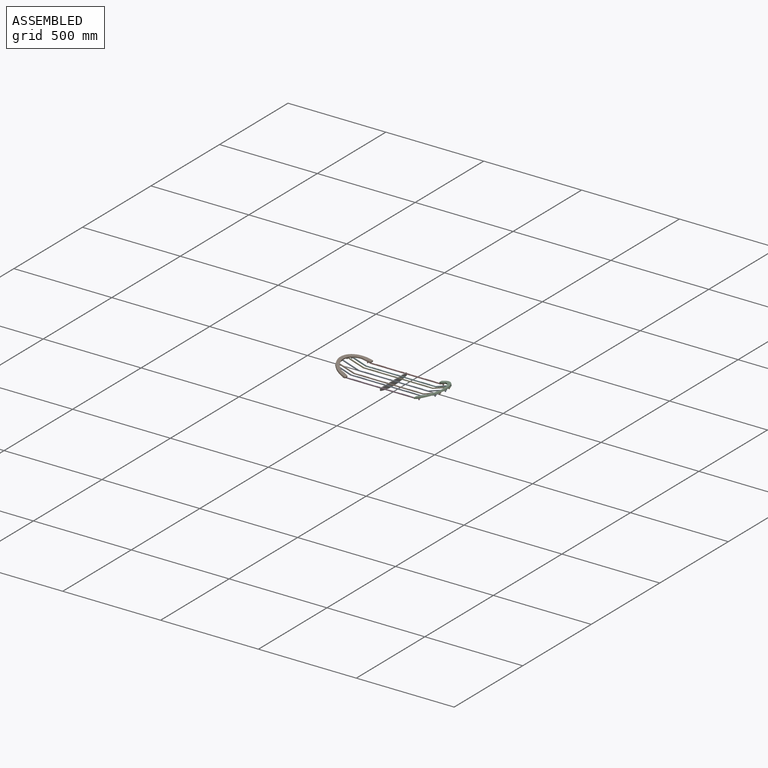
[diagram: assembled view]
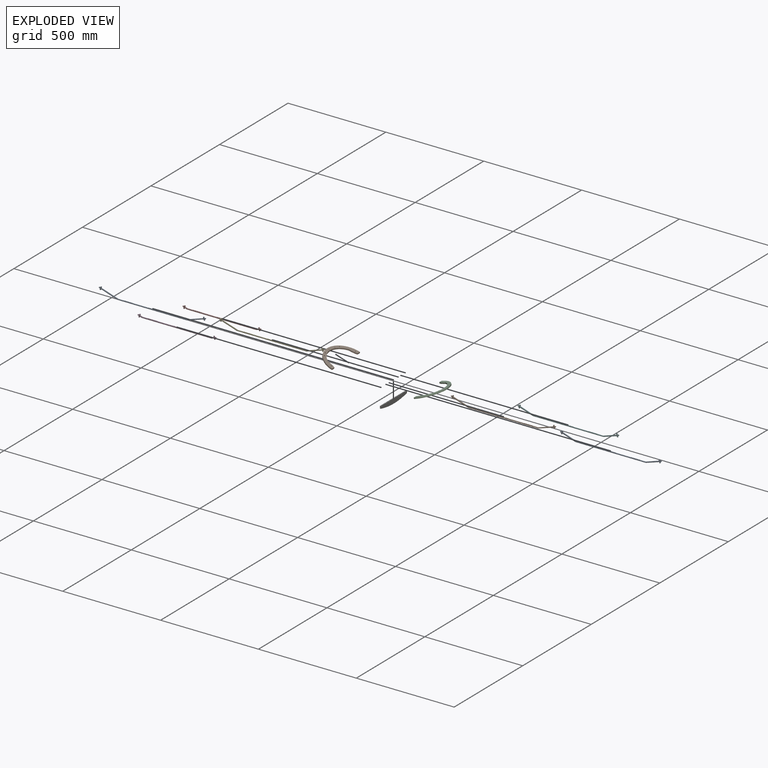
[diagram: exploded view]
GUIDED TOUR — MATED ASSEMBLY (Onshape document d24566d03e6e2440f1f1a7f6, AutoMate assembly d24566d03e6e2440f1f1a7f6_935ead3e7b3816fdfa8bc328_c4fca9ae33e465bc216a4d5f_default)

This assembly has 10 components, labeled P0..P9 below (a component is one placed occurrence of a part; the same part can appear more than once), held together by 9 mates. A mate is a constraint between two components; its type names the relative motion it leaves free:
  FASTENED — locks the two components together rigidly (no relative motion).
Axis/direction vectors are unit vectors and 'through' points are millimeter coordinates, both in the assembly's world frame.

MATES
  1. FASTENED "Fastened 5": P2 <-> P8, direction (-0.952, 0.000, -0.305) through (-121.77, -324.36, -135.49) mm
  2. FASTENED "Fastened 2": P4 <-> P2, direction (0.952, 0.000, 0.305) through (-112.10, -235.62, -132.39) mm
  3. FASTENED "Fastened 3": P2 <-> P9, direction (-0.952, 0.000, -0.305) through (-112.10, -304.44, -132.39) mm
  4. FASTENED "Fastened 7": P2 <-> P3, direction (-0.952, 0.000, -0.305) through (-179.82, -358.46, -154.11) mm
  5. FASTENED "Fastened 1": P0 <-> P2, direction (0.952, 0.000, 0.305) through (-107.26, -270.03, -130.84) mm
  6. FASTENED "Fastened 6": P7 <-> P1, direction (-0.952, 0.000, 0.305) through (-563.58, -181.60, -154.11) mm
  7. FASTENED "Fastened 8": P0 <-> P1, direction (-0.952, 0.000, 0.305) through (-636.14, -270.03, -130.84) mm
  8. FASTENED "Fastened 10": P6 <-> P7, direction (0.000, 0.000, 1.000) through (-371.70, -181.60, -166.36) mm
  9. FASTENED "Fastened 4": P5 <-> P2, direction (0.952, 0.000, 0.305) through (-121.77, -215.69, -135.49) mm

ASSEMBLY ORDER
  1. P2 — the base component [order verified]
  2. P1 [order verified]
  3. P9 [order verified]
  4. P4 [order verified]
  5. P5 [order verified]
  6. P8 [order verified]
  7. P7 [order verified]
  8. P3 [order verified]
  9. P6 [order verified]
  10. P0 [order verified]
Order-tag legend:
  [order verified] — this step's position reverses a verified removal order: the component was checked to insert without passing through the ones already placed.

Of the 10 components, 10 carry the full construction recipe — the FeatureScript program that regenerates the part's solid from scratch; the rest are supplied as boundary geometry only.
Each toured component is shown spotlighted twice — in the assembled view, then in the exploded view, where a leader line traces a displaced component back to its assembled socket (saturated green if recipe-attached, orange if geometry-only; every other component desaturated gray) — followed by its recipe or geometry summary and the mates that hold it.
NOTE — document 2 of 2 of this assembly tour. The two overview renders and the header above are repeated from document 1; the component sections below continue where the previous document stopped.
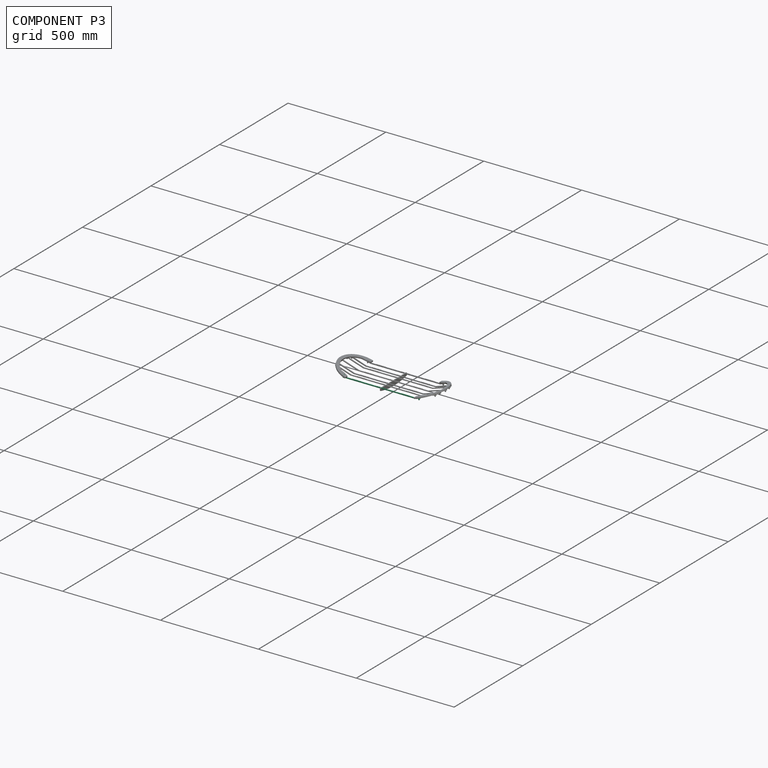
[diagram: component P3 — assembled]
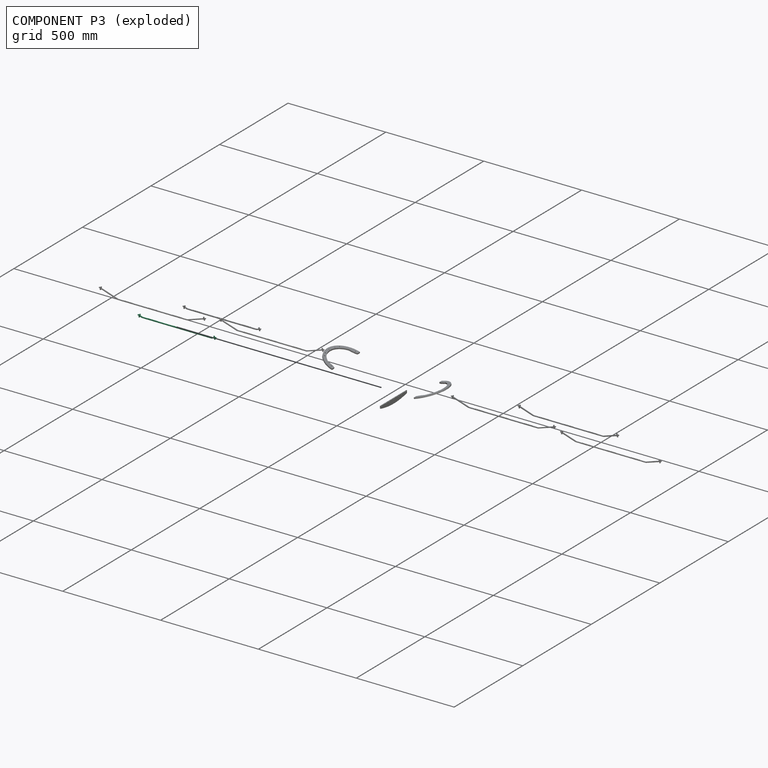
[diagram: component P3 — exploded]
COMPONENT P3 — recipe-attached (CADFS 00899113, mesh-verified: the recipe's output STEP matches this component's geometry to below the mesh-comparison resolution (tessellation chordal tolerance ~0.601 mm)).
Held by: FASTENED mate "Fastened 7" to P2.
Construction recipe (FeatureScript — the CAD program that rebuilds this solid; sketch coordinates are in the units given by the * unit suffixes, e.g. mm):

FeatureScript 1511;
import(path : "onshape/std/geometry.fs", version : "1511.0");
import(path : "onshape/std/common.fs", version : "1511.0");
const mm = millimeter;
const VERTEX = EntityType.VERTEX;
const EDGE = EntityType.EDGE;
const FACE = EntityType.FACE;
const BODY = EntityType.BODY;
function v(x, y){return vector(x, y);}
function OD(order){return orderDisambiguation(order);}
function OSD(set){return originalSetDisambiguation(set);}
function TD(topology){return topologyDisambiguation(topology);}
function TDD(query){return trueDependencyDisambiguation(query);}
function sQuery(a, b, c) {return sketchEntityQuery(a, b, c);}

annotation { "Feature Type Name" : "Feature", "Feature Type Description" : "" }
export const myFeature = defineFeature(function(context is Context, id is Id, definition is map)
    precondition{}
    {
        {
            var Q0;
            Q0=qCreatedBy(makeId("Top.planeOp"),FACE);
            var sketch = newSketch(context, id + "F0", { "sketchPlane" : qUnion([Q0])});
            skLineSegment(sketch, "E0", {"start": v(-319.35, 28.42) * mm, "end": v(36.25, 28.42) * mm});
            skLineSegment(sketch, "E1", {"start": v(-319.35, 28.42) * mm, "end": v(-331.45, 32.3) * mm});
            skLineSegment(sketch, "E2", {"start": v(-331.45, 32.3) * mm, "end": v(-333.23, 26.75) * mm});
            skLineSegment(sketch, "E3", {"start": v(-333.23, 26.75) * mm, "end": v(-337.46, 28.1) * mm});
            skLineSegment(sketch, "E4", {"start": v(-337.46, 28.1) * mm, "end": v(-335.68, 33.66) * mm});
            skLineSegment(sketch, "E5", {"start": v(-335.68, 33.66) * mm, "end": v(-341.73, 35.6) * mm});
            skLineSegment(sketch, "E6", {"start": v(-341.73, 35.6) * mm, "end": v(-340.37, 39.84) * mm});
            skLineSegment(sketch, "E7", {"start": v(-340.37, 39.84) * mm, "end": v(-334.32, 37.9) * mm});
            skLineSegment(sketch, "E8", {"start": v(-334.32, 37.9) * mm, "end": v(-332.54, 43.45) * mm});
            skLineSegment(sketch, "E9", {"start": v(-332.54, 43.45) * mm, "end": v(-328.3, 42.09) * mm});
            skLineSegment(sketch, "E10", {"start": v(-328.3, 42.09) * mm, "end": v(-330.09, 36.54) * mm});
            skLineSegment(sketch, "E11", {"start": v(-330.09, 36.54) * mm, "end": v(-318, 32.66) * mm});
            skLineSegment(sketch, "E12", {"start": v(-318, 32.66) * mm, "end": v(-290.5, 32.66) * mm});
            skLineSegment(sketch, "E13", {"start": v(-142.13, 33.8) * mm, "end": v(-141.27, 32.66) * mm});
            skLineSegment(sketch, "E14.MirrorCS", {"start": v(-142.13, 33.8) * mm, "end": v(-143, 32.66) * mm});
            skLineSegment(sketch, "E15.trimOffspring", {"start": v(-141.27, 32.66) * mm, "end": v(-140.5, 32.66) * mm});
            skPoint(sketch, "E16.start.orphan", {"position": v(-141.55, 28.42) * mm});
            skLineSegment(sketch, "E17.direction1", {"start": v(-141.27, 32.66) * mm, "end": v(-140.5, 32.66) * mm, "construction": true});
            skLineSegment(sketch, "E18.1.0.0", {"start": v(-139.63, 33.8) * mm, "end": v(-138.77, 32.66) * mm});
            skLineSegment(sketch, "E18.1.0.1", {"start": v(-139.63, 33.8) * mm, "end": v(-140.5, 32.66) * mm});
            skLineSegment(sketch, "E18.2.0.0", {"start": v(-137.13, 33.8) * mm, "end": v(-136.27, 32.66) * mm});
            skLineSegment(sketch, "E18.2.0.1", {"start": v(-137.13, 33.8) * mm, "end": v(-138, 32.66) * mm});
            skLineSegment(sketch, "E18.3.0.0", {"start": v(-134.63, 33.8) * mm, "end": v(-133.77, 32.66) * mm});
            skLineSegment(sketch, "E18.3.0.1", {"start": v(-134.63, 33.8) * mm, "end": v(-135.5, 32.66) * mm});
            skLineSegment(sketch, "E18.4.0.0", {"start": v(-132.13, 33.8) * mm, "end": v(-131.27, 32.66) * mm});
            skLineSegment(sketch, "E18.4.0.1", {"start": v(-132.13, 33.8) * mm, "end": v(-133, 32.66) * mm});
            skLineSegment(sketch, "E18.5.0.0", {"start": v(-129.63, 33.8) * mm, "end": v(-128.77, 32.66) * mm});
            skLineSegment(sketch, "E18.5.0.1", {"start": v(-129.63, 33.8) * mm, "end": v(-130.5, 32.66) * mm});
            skLineSegment(sketch, "E18.6.0.0", {"start": v(-127.13, 33.8) * mm, "end": v(-126.27, 32.66) * mm});
            skLineSegment(sketch, "E18.6.0.1", {"start": v(-127.13, 33.8) * mm, "end": v(-128, 32.66) * mm});
            skLineSegment(sketch, "E18.7.0.0", {"start": v(-124.63, 33.8) * mm, "end": v(-123.77, 32.66) * mm});
            skLineSegment(sketch, "E18.7.0.1", {"start": v(-124.63, 33.8) * mm, "end": v(-125.5, 32.66) * mm});
            skLineSegment(sketch, "E18.8.0.0", {"start": v(-122.13, 33.8) * mm, "end": v(-121.27, 32.66) * mm});
            skLineSegment(sketch, "E18.8.0.1", {"start": v(-122.13, 33.8) * mm, "end": v(-123, 32.66) * mm});
            skLineSegment(sketch, "E18.9.0.0", {"start": v(-119.63, 33.8) * mm, "end": v(-118.77, 32.66) * mm});
            skLineSegment(sketch, "E18.9.0.1", {"start": v(-119.63, 33.8) * mm, "end": v(-120.5, 32.66) * mm});
            skLineSegment(sketch, "E19.1.0.0", {"start": v(-144.63, 33.8) * mm, "end": v(-145.5, 32.66) * mm});
            skLineSegment(sketch, "E19.1.0.1", {"start": v(-144.63, 33.8) * mm, "end": v(-143.77, 32.66) * mm});
            skLineSegment(sketch, "E19.2.0.0", {"start": v(-147.13, 33.8) * mm, "end": v(-148, 32.66) * mm});
            skLineSegment(sketch, "E19.2.0.1", {"start": v(-147.13, 33.8) * mm, "end": v(-146.27, 32.66) * mm});
            skLineSegment(sketch, "E19.3.0.0", {"start": v(-149.63, 33.8) * mm, "end": v(-150.5, 32.66) * mm});
            skLineSegment(sketch, "E19.3.0.1", {"start": v(-149.63, 33.8) * mm, "end": v(-148.77, 32.66) * mm});
            skLineSegment(sketch, "E19.4.0.0", {"start": v(-152.13, 33.8) * mm, "end": v(-153, 32.66) * mm});
            skLineSegment(sketch, "E19.4.0.1", {"start": v(-152.13, 33.8) * mm, "end": v(-151.27, 32.66) * mm});
            skLineSegment(sketch, "E19.5.0.0", {"start": v(-154.63, 33.8) * mm, "end": v(-155.5, 32.66) * mm});
            skLineSegment(sketch, "E19.5.0.1", {"start": v(-154.63, 33.8) * mm, "end": v(-153.77, 32.66) * mm});
            skLineSegment(sketch, "E19.6.0.0", {"start": v(-157.13, 33.8) * mm, "end": v(-158, 32.66) * mm});
            skLineSegment(sketch, "E19.6.0.1", {"start": v(-157.13, 33.8) * mm, "end": v(-156.27, 32.66) * mm});
            skLineSegment(sketch, "E19.7.0.0", {"start": v(-159.63, 33.8) * mm, "end": v(-160.5, 32.66) * mm});
            skLineSegment(sketch, "E19.7.0.1", {"start": v(-159.63, 33.8) * mm, "end": v(-158.77, 32.66) * mm});
            skLineSegment(sketch, "E19.8.0.0", {"start": v(-162.13, 33.8) * mm, "end": v(-163, 32.66) * mm});
            skLineSegment(sketch, "E19.8.0.1", {"start": v(-162.13, 33.8) * mm, "end": v(-161.27, 32.66) * mm});
            skLineSegment(sketch, "E19.9.0.0", {"start": v(-164.63, 33.8) * mm, "end": v(-165.5, 32.66) * mm});
            skLineSegment(sketch, "E19.9.0.1", {"start": v(-164.63, 33.8) * mm, "end": v(-163.77, 32.66) * mm});
            skLineSegment(sketch, "E19.direction1", {"start": v(-143, 32.66) * mm, "end": v(-143.77, 32.66) * mm, "construction": true});
            skLineSegment(sketch, "E20.trimOffspring", {"start": v(-163.77, 32.66) * mm, "end": v(-163, 32.66) * mm});
            skLineSegment(sketch, "E21.trimOffspring", {"start": v(-161.27, 32.66) * mm, "end": v(-160.5, 32.66) * mm});
            skLineSegment(sketch, "E22.trimOffspring", {"start": v(-158.77, 32.66) * mm, "end": v(-158, 32.66) * mm});
            skLineSegment(sketch, "E23.trimOffspring", {"start": v(-153.77, 32.66) * mm, "end": v(-153, 32.66) * mm});
            skLineSegment(sketch, "E24.trimOffspring", {"start": v(-156.27, 32.66) * mm, "end": v(-155.5, 32.66) * mm});
            skLineSegment(sketch, "E25.trimOffspring", {"start": v(-151.27, 32.66) * mm, "end": v(-150.5, 32.66) * mm});
            skLineSegment(sketch, "E26.trimOffspring", {"start": v(-148.77, 32.66) * mm, "end": v(-148, 32.66) * mm});
            skLineSegment(sketch, "E27.trimOffspring", {"start": v(-146.27, 32.66) * mm, "end": v(-145.5, 32.66) * mm});
            skLineSegment(sketch, "E28.trimOffspring", {"start": v(-143.77, 32.66) * mm, "end": v(-143, 32.66) * mm});
            skLineSegment(sketch, "E29.trimOffspring", {"start": v(-138.77, 32.66) * mm, "end": v(-138, 32.66) * mm, "construction": true});
            skLineSegment(sketch, "E30.trimOffspring", {"start": v(-138.77, 32.66) * mm, "end": v(-138, 32.66) * mm});
            skLineSegment(sketch, "E31.trimOffspring", {"start": v(-136.27, 32.66) * mm, "end": v(-135.5, 32.66) * mm, "construction": true});
            skLineSegment(sketch, "E32.trimOffspring", {"start": v(-136.27, 32.66) * mm, "end": v(-135.5, 32.66) * mm});
            skLineSegment(sketch, "E33.trimOffspring", {"start": v(-133.77, 32.66) * mm, "end": v(-133, 32.66) * mm, "construction": true});
            skLineSegment(sketch, "E34.trimOffspring", {"start": v(-131.27, 32.66) * mm, "end": v(-130.5, 32.66) * mm, "construction": true});
            skLineSegment(sketch, "E35.trimOffspring", {"start": v(-131.27, 32.66) * mm, "end": v(-130.5, 32.66) * mm});
            skLineSegment(sketch, "E36", {"start": v(-133.77, 32.66) * mm, "end": v(-133, 32.66) * mm});
            skLineSegment(sketch, "E37.trimOffspring", {"start": v(-128.77, 32.66) * mm, "end": v(-128, 32.66) * mm, "construction": true});
            skLineSegment(sketch, "E38.trimOffspring", {"start": v(-128.77, 32.66) * mm, "end": v(-128, 32.66) * mm});
            skLineSegment(sketch, "E39.trimOffspring", {"start": v(-126.27, 32.66) * mm, "end": v(-125.5, 32.66) * mm, "construction": true});
            skLineSegment(sketch, "E40.trimOffspring", {"start": v(-126.27, 32.66) * mm, "end": v(-125.5, 32.66) * mm});
            skLineSegment(sketch, "E41.trimOffspring", {"start": v(-123.77, 32.66) * mm, "end": v(-123, 32.66) * mm, "construction": true});
            skLineSegment(sketch, "E42.trimOffspring", {"start": v(-123.77, 32.66) * mm, "end": v(-123, 32.66) * mm});
            skLineSegment(sketch, "E43.trimOffspring", {"start": v(-121.27, 32.66) * mm, "end": v(-120.5, 32.66) * mm, "construction": true});
            skLineSegment(sketch, "E44.trimOffspring", {"start": v(-121.27, 32.66) * mm, "end": v(-120.5, 32.66) * mm});
            skLineSegment(sketch, "E45.trimOffspring", {"start": v(-118.77, 32.66) * mm, "end": v(-116.27, 32.66) * mm, "construction": true});
            skLineSegment(sketch, "E46.trimOffspring", {"start": v(-118.77, 32.66) * mm, "end": v(-40.5, 32.66) * mm});
            skLineSegment(sketch, "E47.1.0.0", {"start": v(5.37, 33.8) * mm, "end": v(6.23, 32.66) * mm});
            skLineSegment(sketch, "E47.1.0.1", {"start": v(5.37, 33.8) * mm, "end": v(4.5, 32.66) * mm});
            skLineSegment(sketch, "E47.1.0.2", {"start": v(2.87, 33.8) * mm, "end": v(3.73, 32.66) * mm});
            skLineSegment(sketch, "E47.1.0.3", {"start": v(2.87, 33.8) * mm, "end": v(2, 32.66) * mm});
            skLineSegment(sketch, "E47.1.0.4", {"start": v(0.37, 33.8) * mm, "end": v(1.23, 32.66) * mm});
            skLineSegment(sketch, "E47.1.0.5", {"start": v(0.37, 33.8) * mm, "end": v(-0.5, 32.66) * mm});
            skLineSegment(sketch, "E47.1.0.6", {"start": v(-2.13, 33.8) * mm, "end": v(-1.27, 32.66) * mm});
            skLineSegment(sketch, "E47.1.0.7", {"start": v(-2.13, 33.8) * mm, "end": v(-3, 32.66) * mm});
            skLineSegment(sketch, "E47.1.0.8", {"start": v(-4.63, 33.8) * mm, "end": v(-3.77, 32.66) * mm});
            skLineSegment(sketch, "E47.1.0.9", {"start": v(-4.63, 33.8) * mm, "end": v(-5.5, 32.66) * mm});
            skLineSegment(sketch, "E47.1.0.10", {"start": v(-7.13, 33.8) * mm, "end": v(-6.27, 32.66) * mm});
            skLineSegment(sketch, "E47.1.0.11", {"start": v(-7.13, 33.8) * mm, "end": v(-8, 32.66) * mm});
            skLineSegment(sketch, "E47.1.0.12", {"start": v(-9.63, 33.8) * mm, "end": v(-8.77, 32.66) * mm});
            skLineSegment(sketch, "E47.1.0.13", {"start": v(-9.63, 33.8) * mm, "end": v(-10.5, 32.66) * mm});
            skLineSegment(sketch, "E47.1.0.14", {"start": v(-12.13, 33.8) * mm, "end": v(-11.27, 32.66) * mm});
            skLineSegment(sketch, "E47.1.0.15", {"start": v(-12.13, 33.8) * mm, "end": v(-13, 32.66) * mm});
            skLineSegment(sketch, "E47.1.0.16", {"start": v(-14.63, 33.8) * mm, "end": v(-13.77, 32.66) * mm});
            skLineSegment(sketch, "E47.1.0.17", {"start": v(-14.63, 33.8) * mm, "end": v(-15.5, 32.66) * mm});
            skLineSegment(sketch, "E47.1.0.18", {"start": v(-17.13, 33.8) * mm, "end": v(-16.27, 32.66) * mm});
            skLineSegment(sketch, "E47.1.0.19", {"start": v(-17.13, 33.8) * mm, "end": v(-18, 32.66) * mm});
            skLineSegment(sketch, "E47.1.0.20", {"start": v(-19.63, 33.8) * mm, "end": v(-18.77, 32.66) * mm});
            skLineSegment(sketch, "E47.1.0.21", {"start": v(-19.63, 33.8) * mm, "end": v(-20.5, 32.66) * mm});
            skLineSegment(sketch, "E47.1.0.22", {"start": v(-22.13, 33.8) * mm, "end": v(-21.27, 32.66) * mm});
            skLineSegment(sketch, "E47.1.0.23", {"start": v(-22.13, 33.8) * mm, "end": v(-23, 32.66) * mm});
            skLineSegment(sketch, "E47.1.0.24", {"start": v(-24.63, 33.8) * mm, "end": v(-23.77, 32.66) * mm});
            skLineSegment(sketch, "E47.1.0.25", {"start": v(-24.63, 33.8) * mm, "end": v(-25.5, 32.66) * mm});
            skLineSegment(sketch, "E47.1.0.26", {"start": v(-27.13, 33.8) * mm, "end": v(-26.27, 32.66) * mm});
            skLineSegment(sketch, "E47.1.0.27", {"start": v(-27.13, 33.8) * mm, "end": v(-28, 32.66) * mm});
            skLineSegment(sketch, "E47.1.0.28", {"start": v(-29.63, 33.8) * mm, "end": v(-28.77, 32.66) * mm});
            skLineSegment(sketch, "E47.1.0.29", {"start": v(-29.63, 33.8) * mm, "end": v(-30.5, 32.66) * mm});
            skLineSegment(sketch, "E47.1.0.30", {"start": v(-32.13, 33.8) * mm, "end": v(-31.27, 32.66) * mm});
            skLineSegment(sketch, "E47.1.0.31", {"start": v(-32.13, 33.8) * mm, "end": v(-33, 32.66) * mm});
            skLineSegment(sketch, "E47.1.0.32", {"start": v(-34.63, 33.8) * mm, "end": v(-33.77, 32.66) * mm});
            skLineSegment(sketch, "E47.1.0.33", {"start": v(-34.63, 33.8) * mm, "end": v(-35.5, 32.66) * mm});
            skLineSegment(sketch, "E47.1.0.34", {"start": v(-37.13, 33.8) * mm, "end": v(-36.27, 32.66) * mm});
            skLineSegment(sketch, "E47.1.0.35", {"start": v(-37.13, 33.8) * mm, "end": v(-38, 32.66) * mm});
            skLineSegment(sketch, "E47.1.0.36", {"start": v(-39.63, 33.8) * mm, "end": v(-38.77, 32.66) * mm});
            skLineSegment(sketch, "E47.1.0.37", {"start": v(-39.63, 33.8) * mm, "end": v(-40.5, 32.66) * mm});
            skLineSegment(sketch, "E48.1.0.0", {"start": v(-244.63, 33.8) * mm, "end": v(-243.77, 32.66) * mm});
            skLineSegment(sketch, "E48.1.0.1", {"start": v(-244.63, 33.8) * mm, "end": v(-245.5, 32.66) * mm});
            skLineSegment(sketch, "E48.1.0.2", {"start": v(-247.13, 33.8) * mm, "end": v(-246.27, 32.66) * mm});
            skLineSegment(sketch, "E48.1.0.3", {"start": v(-247.13, 33.8) * mm, "end": v(-248, 32.66) * mm});
            skLineSegment(sketch, "E48.1.0.4", {"start": v(-249.63, 33.8) * mm, "end": v(-248.77, 32.66) * mm});
            skLineSegment(sketch, "E48.1.0.5", {"start": v(-249.63, 33.8) * mm, "end": v(-250.5, 32.66) * mm});
            skLineSegment(sketch, "E48.1.0.6", {"start": v(-252.13, 33.8) * mm, "end": v(-251.27, 32.66) * mm});
            skLineSegment(sketch, "E48.1.0.7", {"start": v(-252.13, 33.8) * mm, "end": v(-253, 32.66) * mm});
            skLineSegment(sketch, "E48.1.0.8", {"start": v(-254.63, 33.8) * mm, "end": v(-253.77, 32.66) * mm});
            skLineSegment(sketch, "E48.1.0.9", {"start": v(-254.63, 33.8) * mm, "end": v(-255.5, 32.66) * mm});
            skLineSegment(sketch, "E48.1.0.10", {"start": v(-257.13, 33.8) * mm, "end": v(-256.27, 32.66) * mm});
            skLineSegment(sketch, "E48.1.0.11", {"start": v(-257.13, 33.8) * mm, "end": v(-258, 32.66) * mm});
            skLineSegment(sketch, "E48.1.0.12", {"start": v(-259.63, 33.8) * mm, "end": v(-258.77, 32.66) * mm});
            skLineSegment(sketch, "E48.1.0.13", {"start": v(-259.63, 33.8) * mm, "end": v(-260.5, 32.66) * mm});
            skLineSegment(sketch, "E48.1.0.14", {"start": v(-262.13, 33.8) * mm, "end": v(-261.27, 32.66) * mm});
            skLineSegment(sketch, "E48.1.0.15", {"start": v(-262.13, 33.8) * mm, "end": v(-263, 32.66) * mm});
            skLineSegment(sketch, "E48.1.0.16", {"start": v(-264.63, 33.8) * mm, "end": v(-263.77, 32.66) * mm});
            skLineSegment(sketch, "E48.1.0.17", {"start": v(-264.63, 33.8) * mm, "end": v(-265.5, 32.66) * mm});
            skLineSegment(sketch, "E48.1.0.18", {"start": v(-267.13, 33.8) * mm, "end": v(-266.27, 32.66) * mm});
            skLineSegment(sketch, "E48.1.0.19", {"start": v(-267.13, 33.8) * mm, "end": v(-268, 32.66) * mm});
            skLineSegment(sketch, "E48.1.0.20", {"start": v(-289.63, 33.8) * mm, "end": v(-290.5, 32.66) * mm});
            skLineSegment(sketch, "E48.1.0.21", {"start": v(-289.63, 33.8) * mm, "end": v(-288.77, 32.66) * mm});
            skLineSegment(sketch, "E48.1.0.22", {"start": v(-287.13, 33.8) * mm, "end": v(-288, 32.66) * mm});
            skLineSegment(sketch, "E48.1.0.23", {"start": v(-287.13, 33.8) * mm, "end": v(-286.27, 32.66) * mm});
            skLineSegment(sketch, "E48.1.0.24", {"start": v(-284.63, 33.8) * mm, "end": v(-285.5, 32.66) * mm});
            skLineSegment(sketch, "E48.1.0.25", {"start": v(-284.63, 33.8) * mm, "end": v(-283.77, 32.66) * mm});
            skLineSegment(sketch, "E48.1.0.26", {"start": v(-282.13, 33.8) * mm, "end": v(-283, 32.66) * mm});
            skLineSegment(sketch, "E48.1.0.27", {"start": v(-282.13, 33.8) * mm, "end": v(-281.27, 32.66) * mm});
            skLineSegment(sketch, "E48.1.0.28", {"start": v(-279.63, 33.8) * mm, "end": v(-280.5, 32.66) * mm});
            skLineSegment(sketch, "E48.1.0.29", {"start": v(-279.63, 33.8) * mm, "end": v(-278.77, 32.66) * mm});
            skLineSegment(sketch, "E48.1.0.30", {"start": v(-277.13, 33.8) * mm, "end": v(-278, 32.66) * mm});
            skLineSegment(sketch, "E48.1.0.31", {"start": v(-277.13, 33.8) * mm, "end": v(-276.27, 32.66) * mm});
            skLineSegment(sketch, "E48.1.0.32", {"start": v(-274.63, 33.8) * mm, "end": v(-275.5, 32.66) * mm});
            skLineSegment(sketch, "E48.1.0.33", {"start": v(-274.63, 33.8) * mm, "end": v(-273.77, 32.66) * mm});
            skLineSegment(sketch, "E48.1.0.34", {"start": v(-272.13, 33.8) * mm, "end": v(-273, 32.66) * mm});
            skLineSegment(sketch, "E48.1.0.35", {"start": v(-272.13, 33.8) * mm, "end": v(-271.27, 32.66) * mm});
            skLineSegment(sketch, "E48.1.0.36", {"start": v(-269.63, 33.8) * mm, "end": v(-270.5, 32.66) * mm});
            skLineSegment(sketch, "E48.1.0.37", {"start": v(-269.63, 33.8) * mm, "end": v(-268.77, 32.66) * mm});
            skLineSegment(sketch, "E48.direction1", {"start": v(-118.77, 32.66) * mm, "end": v(-243.77, 32.66) * mm, "construction": true});
            skLineSegment(sketch, "E49.trimOffspring", {"start": v(-288.77, 32.66) * mm, "end": v(-288, 32.66) * mm});
            skLineSegment(sketch, "E50.trimOffspring", {"start": v(-286.27, 32.66) * mm, "end": v(-285.5, 32.66) * mm});
            skLineSegment(sketch, "E51.trimOffspring", {"start": v(-283.77, 32.66) * mm, "end": v(-283, 32.66) * mm});
            skLineSegment(sketch, "E52.trimOffspring", {"start": v(-281.27, 32.66) * mm, "end": v(-280.5, 32.66) * mm});
            skLineSegment(sketch, "E53.trimOffspring", {"start": v(-278.77, 32.66) * mm, "end": v(-278, 32.66) * mm});
            skLineSegment(sketch, "E54.trimOffspring", {"start": v(-276.27, 32.66) * mm, "end": v(-275.5, 32.66) * mm});
            skLineSegment(sketch, "E55.trimOffspring", {"start": v(-273.77, 32.66) * mm, "end": v(-273, 32.66) * mm});
            skLineSegment(sketch, "E56.trimOffspring", {"start": v(-271.27, 32.66) * mm, "end": v(-270.5, 32.66) * mm});
            skLineSegment(sketch, "E57.trimOffspring", {"start": v(-268.77, 32.66) * mm, "end": v(-268, 32.66) * mm});
            skLineSegment(sketch, "E58.trimOffspring", {"start": v(-266.27, 32.66) * mm, "end": v(-265.5, 32.66) * mm});
            skLineSegment(sketch, "E59.trimOffspring", {"start": v(-263.77, 32.66) * mm, "end": v(-263, 32.66) * mm});
            skLineSegment(sketch, "E60.trimOffspring", {"start": v(-261.27, 32.66) * mm, "end": v(-260.5, 32.66) * mm});
            skLineSegment(sketch, "E61.trimOffspring", {"start": v(-258.77, 32.66) * mm, "end": v(-258, 32.66) * mm});
            skLineSegment(sketch, "E62.trimOffspring", {"start": v(-256.27, 32.66) * mm, "end": v(-255.5, 32.66) * mm});
            skLineSegment(sketch, "E63.trimOffspring", {"start": v(-253.77, 32.66) * mm, "end": v(-253, 32.66) * mm});
            skLineSegment(sketch, "E64.trimOffspring", {"start": v(-251.27, 32.66) * mm, "end": v(-250.5, 32.66) * mm});
            skLineSegment(sketch, "E65.trimOffspring", {"start": v(-248.77, 32.66) * mm, "end": v(-248, 32.66) * mm});
            skLineSegment(sketch, "E66.trimOffspring", {"start": v(-246.27, 32.66) * mm, "end": v(-245.5, 32.66) * mm});
            skLineSegment(sketch, "E67.trimOffspring", {"start": v(-243.77, 32.66) * mm, "end": v(-165.5, 32.66) * mm});
            skLineSegment(sketch, "E68.trimOffspring", {"start": v(6.23, 32.66) * mm, "end": v(33.73, 32.66) * mm});
            skLineSegment(sketch, "E69.trimOffspring", {"start": v(3.73, 32.66) * mm, "end": v(4.5, 32.66) * mm, "construction": true});
            skLineSegment(sketch, "E70.trimOffspring", {"start": v(3.73, 32.66) * mm, "end": v(4.5, 32.66) * mm});
            skLineSegment(sketch, "E71.trimOffspring", {"start": v(1.23, 32.66) * mm, "end": v(2, 32.66) * mm, "construction": true});
            skLineSegment(sketch, "E72.trimOffspring", {"start": v(1.23, 32.66) * mm, "end": v(2, 32.66) * mm});
            skLineSegment(sketch, "E73.trimOffspring", {"start": v(-1.27, 32.66) * mm, "end": v(-0.5, 32.66) * mm, "construction": true});
            skLineSegment(sketch, "E74.trimOffspring", {"start": v(-1.27, 32.66) * mm, "end": v(-0.5, 32.66) * mm});
            skLineSegment(sketch, "E75.trimOffspring", {"start": v(-3.77, 32.66) * mm, "end": v(-3, 32.66) * mm, "construction": true});
            skLineSegment(sketch, "E76.trimOffspring", {"start": v(-3.77, 32.66) * mm, "end": v(-3, 32.66) * mm});
            skLineSegment(sketch, "E77.trimOffspring", {"start": v(-6.27, 32.66) * mm, "end": v(-5.5, 32.66) * mm});
            skLineSegment(sketch, "E78.trimOffspring", {"start": v(-8.77, 32.66) * mm, "end": v(-8, 32.66) * mm});
            skLineSegment(sketch, "E79.trimOffspring", {"start": v(-11.27, 32.66) * mm, "end": v(-10.5, 32.66) * mm});
            skLineSegment(sketch, "E80.trimOffspring", {"start": v(-13.77, 32.66) * mm, "end": v(-13, 32.66) * mm});
            skLineSegment(sketch, "E81.trimOffspring", {"start": v(-16.27, 32.66) * mm, "end": v(-15.5, 32.66) * mm});
            skLineSegment(sketch, "E82.trimOffspring", {"start": v(-18.77, 32.66) * mm, "end": v(-18, 32.66) * mm});
            skLineSegment(sketch, "E83.trimOffspring", {"start": v(-21.27, 32.66) * mm, "end": v(-20.5, 32.66) * mm});
            skLineSegment(sketch, "E84.trimOffspring", {"start": v(-23.77, 32.66) * mm, "end": v(-23, 32.66) * mm});
            skLineSegment(sketch, "E85.trimOffspring", {"start": v(-38.77, 32.66) * mm, "end": v(-38, 32.66) * mm});
            skLineSegment(sketch, "E86.trimOffspring", {"start": v(-36.27, 32.66) * mm, "end": v(-35.5, 32.66) * mm});
            skLineSegment(sketch, "E87.trimOffspring", {"start": v(-33.77, 32.66) * mm, "end": v(-33, 32.66) * mm});
            skLineSegment(sketch, "E88.trimOffspring", {"start": v(-31.27, 32.66) * mm, "end": v(-30.5, 32.66) * mm});
            skLineSegment(sketch, "E89.trimOffspring", {"start": v(-28.77, 32.66) * mm, "end": v(-28, 32.66) * mm});
            skLineSegment(sketch, "E90.trimOffspring", {"start": v(-26.27, 32.66) * mm, "end": v(-25.5, 32.66) * mm});
            skLineSegment(sketch, "E91.MirrorCS", {"start": v(57.27, 39.84) * mm, "end": v(51.22, 37.9) * mm});
            skLineSegment(sketch, "E92.MirrorCS", {"start": v(45.2, 42.09) * mm, "end": v(46.98, 36.54) * mm});
            skLineSegment(sketch, "E93.MirrorCS", {"start": v(46.98, 36.54) * mm, "end": v(33.73, 32.66) * mm});
            skLineSegment(sketch, "E94.MirrorCS", {"start": v(54.36, 28.1) * mm, "end": v(52.58, 33.66) * mm});
            skLineSegment(sketch, "E95.MirrorCS", {"start": v(49.44, 43.45) * mm, "end": v(45.2, 42.09) * mm});
            skLineSegment(sketch, "E96.MirrorCS", {"start": v(58.63, 35.6) * mm, "end": v(57.27, 39.84) * mm});
            skLineSegment(sketch, "E97.MirrorCS", {"start": v(52.58, 33.66) * mm, "end": v(58.63, 35.6) * mm});
            skLineSegment(sketch, "E98.MirrorCS", {"start": v(36.25, 28.42) * mm, "end": v(48.34, 32.3) * mm});
            skLineSegment(sketch, "E99.MirrorCS", {"start": v(50.12, 26.75) * mm, "end": v(54.36, 28.1) * mm});
            skLineSegment(sketch, "E100.MirrorCS", {"start": v(48.34, 32.3) * mm, "end": v(50.12, 26.75) * mm});
            skLineSegment(sketch, "E101.MirrorCS", {"start": v(51.22, 37.9) * mm, "end": v(49.44, 43.45) * mm});
            skSolve(sketch);
        }
        {
            var Q0;
            Q0=makeQuery(id+"F0.imprint","IMPRINT",FACE,{"disambiguationData":[TD([[makeQuery(id+"F0.imprint","IMPRINT",EDGE,{"derivedFrom":sQuery(id+"F0.wireOp",EDGE,"E0")}),1.0]])]});
            extrude(context, id + "F1", {"entities" : qUnion([Q0]), "depth" : 4.45 * mm, "offsetDistance" : 25 * mm});
        }
    });
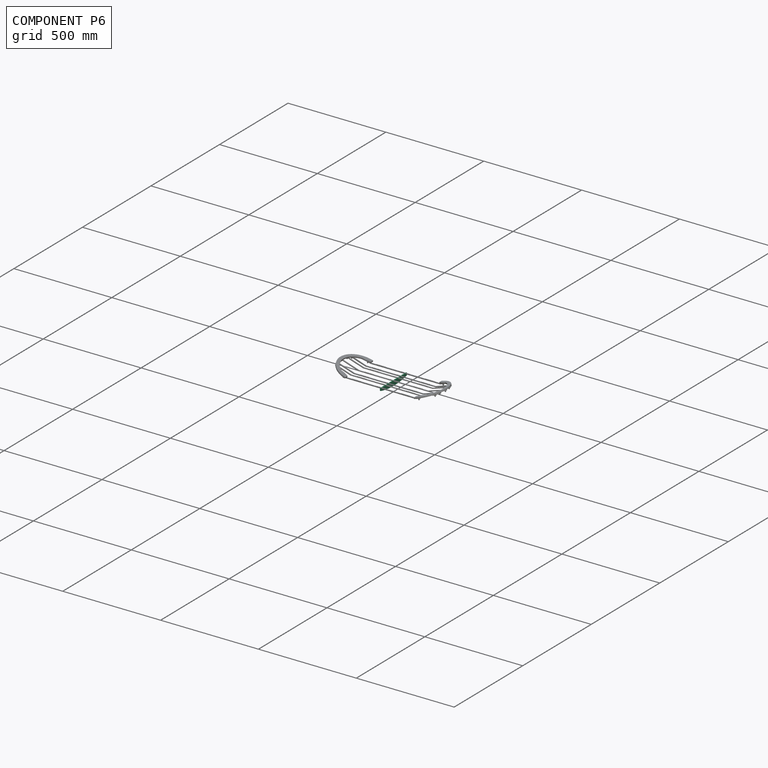
[diagram: component P6 — assembled]
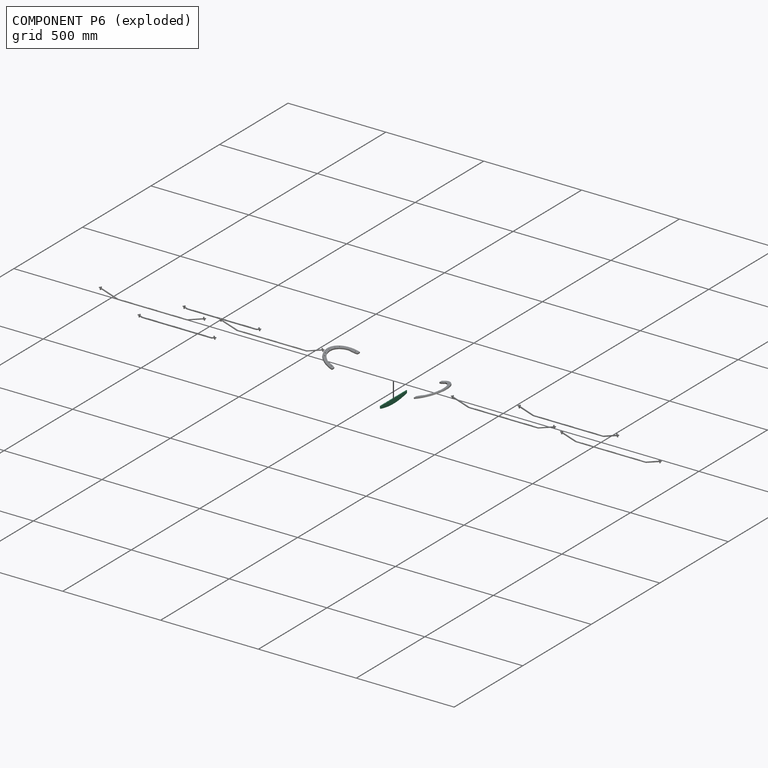
[diagram: component P6 — exploded]
COMPONENT P6 — recipe-attached (CADFS 00899118, mesh-verified: the recipe's output STEP matches this component's geometry to below the mesh-comparison resolution (tessellation chordal tolerance ~0.289 mm)).
Held by: FASTENED mate "Fastened 10" to P7.
Construction recipe (FeatureScript — the CAD program that rebuilds this solid; sketch coordinates are in the units given by the * unit suffixes, e.g. mm):

FeatureScript 1511;
import(path : "onshape/std/geometry.fs", version : "1511.0");
import(path : "onshape/std/common.fs", version : "1511.0");
const mm = millimeter;
const VERTEX = EntityType.VERTEX;
const EDGE = EntityType.EDGE;
const FACE = EntityType.FACE;
const BODY = EntityType.BODY;
function v(x, y){return vector(x, y);}
function OD(order){return orderDisambiguation(order);}
function OSD(set){return originalSetDisambiguation(set);}
function TD(topology){return topologyDisambiguation(topology);}
function TDD(query){return trueDependencyDisambiguation(query);}
function sQuery(a, b, c) {return sketchEntityQuery(a, b, c);}

annotation { "Feature Type Name" : "Feature", "Feature Type Description" : "" }
export const myFeature = defineFeature(function(context is Context, id is Id, definition is map)
    precondition{}
    {
        {
            var Q0;
            Q0=qCreatedBy(makeId("Front.planeOp"),FACE);
            var sketch = newSketch(context, id + "F0", { "sketchPlane" : qUnion([Q0])});
            skLineSegment(sketch, "E0.bottom", {"start": v(2.22, 88.9) * mm, "end": v(-2.23, 88.9) * mm});
            skLineSegment(sketch, "E0.left", {"start": v(2.22, 88.9) * mm, "end": v(2.22, 93.35) * mm});
            skLineSegment(sketch, "E0.right", {"start": v(-2.23, 88.9) * mm, "end": v(-2.23, 93.35) * mm});
            skPoint(sketch, "E0.middle", {"position": v(0, 91.12) * mm});
            skPoint(sketch, "E1.orphan", {"position": v(0, 0) * mm});
            skLineSegment(sketch, "E2.bottom", {"start": v(-52.11, 88.9) * mm, "end": v(-56.56, 88.9) * mm});
            skLineSegment(sketch, "E2.left", {"start": v(-52.11, 88.9) * mm, "end": v(-52.11, 93.35) * mm});
            skLineSegment(sketch, "E2.right", {"start": v(-56.56, 88.9) * mm, "end": v(-56.56, 93.35) * mm});
            skPoint(sketch, "E2.middle", {"position": v(-54.34, 91.13) * mm});
            skLineSegment(sketch, "E3.MirrorCS", {"start": v(52.11, 88.9) * mm, "end": v(56.56, 88.9) * mm});
            skLineSegment(sketch, "E4.MirrorCS", {"start": v(56.56, 88.9) * mm, "end": v(56.56, 93.35) * mm});
            skLineSegment(sketch, "E5.MirrorCS", {"start": v(52.11, 88.9) * mm, "end": v(52.11, 93.35) * mm});
            skLineSegment(sketch, "E6.bottom", {"start": v(-32.18, 88.9) * mm, "end": v(-36.63, 88.9) * mm});
            skLineSegment(sketch, "E6.left", {"start": v(-32.18, 88.9) * mm, "end": v(-32.18, 93.35) * mm});
            skLineSegment(sketch, "E6.right", {"start": v(-36.63, 88.9) * mm, "end": v(-36.63, 93.35) * mm});
            skPoint(sketch, "E6.middle", {"position": v(-34.4, 91.13) * mm});
            skLineSegment(sketch, "E7.MirrorCS", {"start": v(32.18, 88.9) * mm, "end": v(32.18, 93.35) * mm});
            skLineSegment(sketch, "E8.MirrorCS", {"start": v(32.18, 88.9) * mm, "end": v(36.63, 88.9) * mm});
            skLineSegment(sketch, "E9.MirrorCS", {"start": v(36.63, 88.9) * mm, "end": v(36.63, 93.35) * mm});
            skLineSegment(sketch, "E10.bottom", {"start": v(-90.66, 88.9) * mm, "end": v(-86.2, 88.9) * mm});
            skLineSegment(sketch, "E10.left", {"start": v(-90.66, 88.9) * mm, "end": v(-90.66, 93.35) * mm});
            skLineSegment(sketch, "E10.right", {"start": v(-86.2, 88.9) * mm, "end": v(-86.2, 93.35) * mm});
            skLineSegment(sketch, "E11.MirrorCS", {"start": v(90.66, 88.9) * mm, "end": v(86.2, 88.9) * mm});
            skLineSegment(sketch, "E12.MirrorCS", {"start": v(86.2, 88.9) * mm, "end": v(86.2, 93.35) * mm});
            skLineSegment(sketch, "E13.MirrorCS", {"start": v(90.66, 88.9) * mm, "end": v(90.66, 93.35) * mm});
            skLineSegment(sketch, "E14", {"start": v(-86.2, 93.35) * mm, "end": v(-56.56, 93.35) * mm});
            skLineSegment(sketch, "E15", {"start": v(-52.11, 93.35) * mm, "end": v(-36.63, 93.35) * mm});
            skLineSegment(sketch, "E16", {"start": v(-32.18, 93.35) * mm, "end": v(-2.23, 93.35) * mm});
            skLineSegment(sketch, "E17", {"start": v(2.22, 93.35) * mm, "end": v(32.18, 93.35) * mm});
            skLineSegment(sketch, "E18", {"start": v(36.63, 93.35) * mm, "end": v(52.11, 93.35) * mm});
            skLineSegment(sketch, "E19", {"start": v(86.2, 93.35) * mm, "end": v(56.56, 93.35) * mm});
            skLineSegment(sketch, "E20", {"start": v(-90.66, 93.35) * mm, "end": v(-95.66, 93.35) * mm});
            skLineSegment(sketch, "E21.MirrorCS", {"start": v(90.66, 93.35) * mm, "end": v(95.66, 93.35) * mm});
            skLineSegment(sketch, "E22", {"start": v(-95.66, 93.35) * mm, "end": v(-95.66, 80.85) * mm});
            skLineSegment(sketch, "E23.MirrorCS", {"start": v(95.66, 93.35) * mm, "end": v(95.66, 80.85) * mm});
            skArc(sketch, "E24", {"start": v(-95.66, 80.85) * mm, "mid": v(0, 68.64) * mm, "end": v(95.66, 80.85) * mm});
            skSolve(sketch);
        }
        {
            var Q0;
            Q0=makeQuery(id+"F0.imprint","IMPRINT",FACE,{"disambiguationData":[TD([[makeQuery(id+"F0.imprint","IMPRINT",EDGE,{"derivedFrom":sQuery(id+"F0.wireOp",EDGE,"E0.bottom")}),1.0]])]});
            extrude(context, id + "F1", {"entities" : qUnion([Q0]), "depth" : 4.45 * mm, "offsetDistance" : 25 * mm});
        }
    });
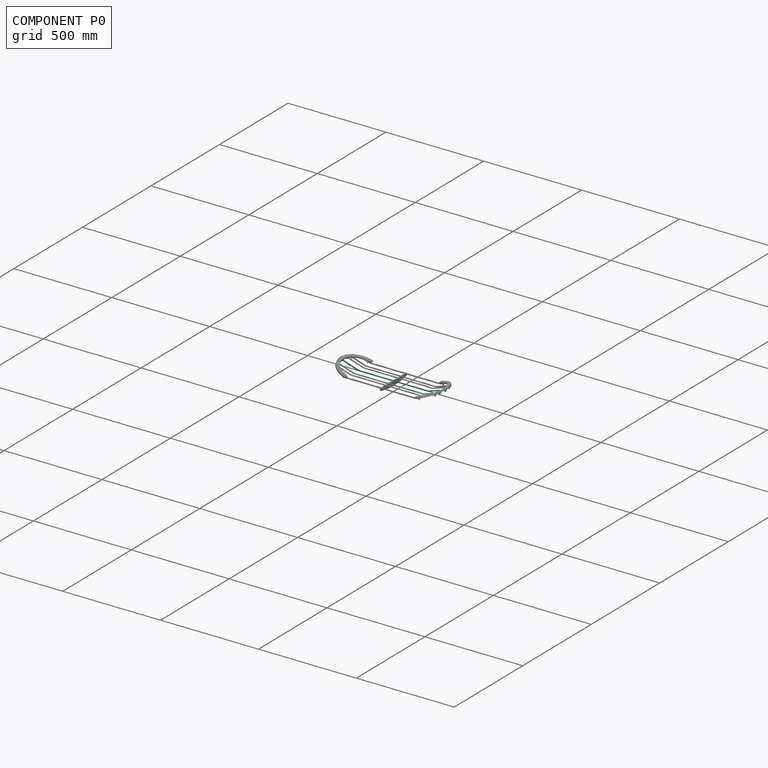
[diagram: component P0 — assembled]
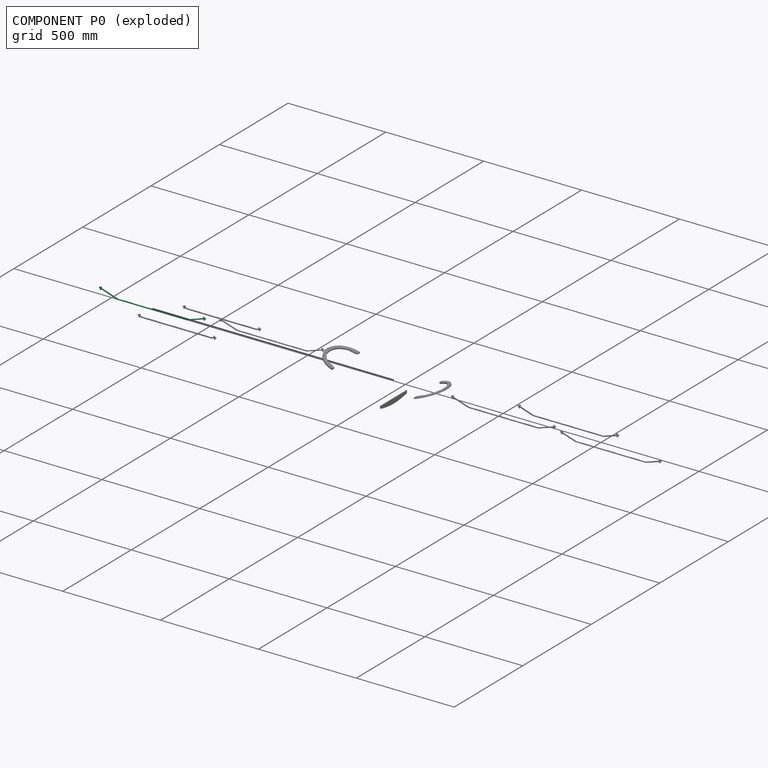
[diagram: component P0 — exploded]
COMPONENT P0 — recipe-attached (CADFS 00899116, mesh-verified: the recipe's output STEP matches this component's geometry to below the mesh-comparison resolution (tessellation chordal tolerance ~0.82 mm)).
Held by: FASTENED mate "Fastened 1" to P2; FASTENED mate "Fastened 8" to P1.
Construction recipe (FeatureScript — the CAD program that rebuilds this solid; sketch coordinates are in the units given by the * unit suffixes, e.g. mm):

FeatureScript 1511;
import(path : "onshape/std/geometry.fs", version : "1511.0");
import(path : "onshape/std/common.fs", version : "1511.0");
const mm = millimeter;
const VERTEX = EntityType.VERTEX;
const EDGE = EntityType.EDGE;
const FACE = EntityType.FACE;
const BODY = EntityType.BODY;
function v(x, y){return vector(x, y);}
function OD(order){return orderDisambiguation(order);}
function OSD(set){return originalSetDisambiguation(set);}
function TD(topology){return topologyDisambiguation(topology);}
function TDD(query){return trueDependencyDisambiguation(query);}
function sQuery(a, b, c) {return sketchEntityQuery(a, b, c);}

annotation { "Feature Type Name" : "Feature", "Feature Type Description" : "" }
export const myFeature = defineFeature(function(context is Context, id is Id, definition is map)
    precondition{}
    {
        {
            var Q0;
            Q0=qCreatedBy(makeId("Top.planeOp"),FACE);
            var sketch = newSketch(context, id + "F0", { "sketchPlane" : qUnion([Q0])});
            skLineSegment(sketch, "E0", {"start": v(-248.6, 5.73) * mm, "end": v(107, 5.73) * mm});
            skLineSegment(sketch, "E1", {"start": v(-248.6, 5.73) * mm, "end": v(-333.25, 32.88) * mm});
            skLineSegment(sketch, "E2", {"start": v(-333.25, 32.88) * mm, "end": v(-335.04, 27.33) * mm});
            skLineSegment(sketch, "E3", {"start": v(-335.04, 27.33) * mm, "end": v(-339.27, 28.69) * mm});
            skLineSegment(sketch, "E4", {"start": v(-339.27, 28.69) * mm, "end": v(-337.5, 34.24) * mm});
            skLineSegment(sketch, "E5", {"start": v(-337.5, 34.24) * mm, "end": v(-343.54, 36.18) * mm});
            skLineSegment(sketch, "E6", {"start": v(-343.54, 36.18) * mm, "end": v(-342.18, 40.42) * mm});
            skLineSegment(sketch, "E7", {"start": v(-342.18, 40.42) * mm, "end": v(-336.13, 38.48) * mm});
            skLineSegment(sketch, "E8", {"start": v(-336.13, 38.48) * mm, "end": v(-334.35, 44.03) * mm});
            skLineSegment(sketch, "E9", {"start": v(-334.35, 44.03) * mm, "end": v(-330.11, 42.67) * mm});
            skLineSegment(sketch, "E10", {"start": v(-330.11, 42.67) * mm, "end": v(-331.9, 37.12) * mm});
            skLineSegment(sketch, "E11", {"start": v(-331.9, 37.12) * mm, "end": v(-247.24, 9.97) * mm});
            skLineSegment(sketch, "E12", {"start": v(-245.43, 9.39) * mm, "end": v(-217.94, 9.39) * mm});
            skLineSegment(sketch, "E13", {"start": v(-69.57, 10.53) * mm, "end": v(-68.7, 9.39) * mm});
            skLineSegment(sketch, "E14.MirrorCS", {"start": v(-69.57, 10.53) * mm, "end": v(-70.44, 9.39) * mm});
            skLineSegment(sketch, "E15.trimOffspring", {"start": v(-68.7, 9.39) * mm, "end": v(-67.94, 9.39) * mm});
            skPoint(sketch, "E16.start.orphan", {"position": v(-69.57, 3.34) * mm});
            skLineSegment(sketch, "E17.direction1", {"start": v(-68.7, 9.39) * mm, "end": v(-67.94, 9.39) * mm, "construction": true});
            skLineSegment(sketch, "E18.1.0.0", {"start": v(-67.07, 10.53) * mm, "end": v(-66.2, 9.39) * mm});
            skLineSegment(sketch, "E18.1.0.1", {"start": v(-67.07, 10.53) * mm, "end": v(-67.94, 9.39) * mm});
            skLineSegment(sketch, "E18.2.0.0", {"start": v(-64.57, 10.53) * mm, "end": v(-63.7, 9.39) * mm});
            skLineSegment(sketch, "E18.2.0.1", {"start": v(-64.57, 10.53) * mm, "end": v(-65.44, 9.39) * mm});
            skLineSegment(sketch, "E18.3.0.0", {"start": v(-62.07, 10.53) * mm, "end": v(-61.2, 9.39) * mm});
            skLineSegment(sketch, "E18.3.0.1", {"start": v(-62.07, 10.53) * mm, "end": v(-62.94, 9.39) * mm});
            skLineSegment(sketch, "E18.4.0.0", {"start": v(-59.57, 10.53) * mm, "end": v(-58.7, 9.39) * mm});
            skLineSegment(sketch, "E18.4.0.1", {"start": v(-59.57, 10.53) * mm, "end": v(-60.44, 9.39) * mm});
            skLineSegment(sketch, "E18.5.0.0", {"start": v(-57.07, 10.53) * mm, "end": v(-56.2, 9.39) * mm});
            skLineSegment(sketch, "E18.5.0.1", {"start": v(-57.07, 10.53) * mm, "end": v(-57.94, 9.39) * mm});
            skLineSegment(sketch, "E18.6.0.0", {"start": v(-54.57, 10.53) * mm, "end": v(-53.7, 9.39) * mm});
            skLineSegment(sketch, "E18.6.0.1", {"start": v(-54.57, 10.53) * mm, "end": v(-55.44, 9.39) * mm});
            skLineSegment(sketch, "E18.7.0.0", {"start": v(-52.07, 10.53) * mm, "end": v(-51.2, 9.39) * mm});
            skLineSegment(sketch, "E18.7.0.1", {"start": v(-52.07, 10.53) * mm, "end": v(-52.94, 9.39) * mm});
            skLineSegment(sketch, "E18.8.0.0", {"start": v(-49.57, 10.53) * mm, "end": v(-48.7, 9.39) * mm});
            skLineSegment(sketch, "E18.8.0.1", {"start": v(-49.57, 10.53) * mm, "end": v(-50.44, 9.39) * mm});
            skLineSegment(sketch, "E18.9.0.0", {"start": v(-47.07, 10.53) * mm, "end": v(-46.2, 9.39) * mm});
            skLineSegment(sketch, "E18.9.0.1", {"start": v(-47.07, 10.53) * mm, "end": v(-47.94, 9.39) * mm});
            skLineSegment(sketch, "E19.1.0.0", {"start": v(-72.07, 10.53) * mm, "end": v(-72.94, 9.39) * mm});
            skLineSegment(sketch, "E19.1.0.1", {"start": v(-72.07, 10.53) * mm, "end": v(-71.2, 9.39) * mm});
            skLineSegment(sketch, "E19.2.0.0", {"start": v(-74.57, 10.53) * mm, "end": v(-75.44, 9.39) * mm});
            skLineSegment(sketch, "E19.2.0.1", {"start": v(-74.57, 10.53) * mm, "end": v(-73.7, 9.39) * mm});
            skLineSegment(sketch, "E19.3.0.0", {"start": v(-77.07, 10.53) * mm, "end": v(-77.94, 9.39) * mm});
            skLineSegment(sketch, "E19.3.0.1", {"start": v(-77.07, 10.53) * mm, "end": v(-76.2, 9.39) * mm});
            skLineSegment(sketch, "E19.4.0.0", {"start": v(-79.57, 10.53) * mm, "end": v(-80.44, 9.39) * mm});
            skLineSegment(sketch, "E19.4.0.1", {"start": v(-79.57, 10.53) * mm, "end": v(-78.7, 9.39) * mm});
            skLineSegment(sketch, "E19.5.0.0", {"start": v(-82.07, 10.53) * mm, "end": v(-82.94, 9.39) * mm});
            skLineSegment(sketch, "E19.5.0.1", {"start": v(-82.07, 10.53) * mm, "end": v(-81.2, 9.39) * mm});
            skLineSegment(sketch, "E19.6.0.0", {"start": v(-84.57, 10.53) * mm, "end": v(-85.44, 9.39) * mm});
            skLineSegment(sketch, "E19.6.0.1", {"start": v(-84.57, 10.53) * mm, "end": v(-83.7, 9.39) * mm});
            skLineSegment(sketch, "E19.7.0.0", {"start": v(-87.07, 10.53) * mm, "end": v(-87.94, 9.39) * mm});
            skLineSegment(sketch, "E19.7.0.1", {"start": v(-87.07, 10.53) * mm, "end": v(-86.2, 9.39) * mm});
            skLineSegment(sketch, "E19.8.0.0", {"start": v(-89.57, 10.53) * mm, "end": v(-90.44, 9.39) * mm});
            skLineSegment(sketch, "E19.8.0.1", {"start": v(-89.57, 10.53) * mm, "end": v(-88.7, 9.39) * mm});
            skLineSegment(sketch, "E19.9.0.0", {"start": v(-92.07, 10.53) * mm, "end": v(-92.94, 9.39) * mm});
            skLineSegment(sketch, "E19.9.0.1", {"start": v(-92.07, 10.53) * mm, "end": v(-91.2, 9.39) * mm});
            skLineSegment(sketch, "E19.direction1", {"start": v(-70.44, 9.39) * mm, "end": v(-71.2, 9.39) * mm, "construction": true});
            skLineSegment(sketch, "E20.trimOffspring", {"start": v(-91.2, 9.39) * mm, "end": v(-90.44, 9.39) * mm});
            skLineSegment(sketch, "E21.trimOffspring", {"start": v(-88.7, 9.39) * mm, "end": v(-87.94, 9.39) * mm});
            skLineSegment(sketch, "E22.trimOffspring", {"start": v(-86.2, 9.39) * mm, "end": v(-85.44, 9.39) * mm});
            skLineSegment(sketch, "E23.trimOffspring", {"start": v(-81.2, 9.39) * mm, "end": v(-80.44, 9.39) * mm});
            skLineSegment(sketch, "E24.trimOffspring", {"start": v(-83.7, 9.39) * mm, "end": v(-82.94, 9.39) * mm});
            skLineSegment(sketch, "E25.trimOffspring", {"start": v(-78.7, 9.39) * mm, "end": v(-77.94, 9.39) * mm});
            skLineSegment(sketch, "E26.trimOffspring", {"start": v(-76.2, 9.39) * mm, "end": v(-75.44, 9.39) * mm});
            skLineSegment(sketch, "E27.trimOffspring", {"start": v(-73.7, 9.39) * mm, "end": v(-72.94, 9.39) * mm});
            skLineSegment(sketch, "E28.trimOffspring", {"start": v(-71.2, 9.39) * mm, "end": v(-70.44, 9.39) * mm});
            skLineSegment(sketch, "E29.trimOffspring", {"start": v(-66.2, 9.39) * mm, "end": v(-65.44, 9.39) * mm, "construction": true});
            skLineSegment(sketch, "E30.trimOffspring", {"start": v(-66.2, 9.39) * mm, "end": v(-65.44, 9.39) * mm});
            skLineSegment(sketch, "E31.trimOffspring", {"start": v(-63.7, 9.39) * mm, "end": v(-62.94, 9.39) * mm, "construction": true});
            skLineSegment(sketch, "E32.trimOffspring", {"start": v(-63.7, 9.39) * mm, "end": v(-62.94, 9.39) * mm});
            skLineSegment(sketch, "E33.trimOffspring", {"start": v(-61.2, 9.39) * mm, "end": v(-60.44, 9.39) * mm, "construction": true});
            skLineSegment(sketch, "E34.trimOffspring", {"start": v(-58.7, 9.39) * mm, "end": v(-57.94, 9.39) * mm, "construction": true});
            skLineSegment(sketch, "E35.trimOffspring", {"start": v(-58.7, 9.39) * mm, "end": v(-57.94, 9.39) * mm});
            skLineSegment(sketch, "E36", {"start": v(-61.2, 9.39) * mm, "end": v(-60.44, 9.39) * mm});
            skLineSegment(sketch, "E37.trimOffspring", {"start": v(-56.2, 9.39) * mm, "end": v(-55.44, 9.39) * mm, "construction": true});
            skLineSegment(sketch, "E38.trimOffspring", {"start": v(-56.2, 9.39) * mm, "end": v(-55.44, 9.39) * mm});
            skLineSegment(sketch, "E39.trimOffspring", {"start": v(-53.7, 9.39) * mm, "end": v(-52.94, 9.39) * mm, "construction": true});
            skLineSegment(sketch, "E40.trimOffspring", {"start": v(-53.7, 9.39) * mm, "end": v(-52.94, 9.39) * mm});
            skLineSegment(sketch, "E41.trimOffspring", {"start": v(-51.2, 9.39) * mm, "end": v(-50.44, 9.39) * mm, "construction": true});
            skLineSegment(sketch, "E42.trimOffspring", {"start": v(-51.2, 9.39) * mm, "end": v(-50.44, 9.39) * mm});
            skLineSegment(sketch, "E43.trimOffspring", {"start": v(-48.7, 9.39) * mm, "end": v(-47.94, 9.39) * mm, "construction": true});
            skLineSegment(sketch, "E44.trimOffspring", {"start": v(-48.7, 9.39) * mm, "end": v(-47.94, 9.39) * mm});
            skLineSegment(sketch, "E45.trimOffspring", {"start": v(-46.2, 9.39) * mm, "end": v(-43.7, 9.39) * mm, "construction": true});
            skLineSegment(sketch, "E46.trimOffspring", {"start": v(-46.2, 9.39) * mm, "end": v(32.06, 9.39) * mm});
            skLineSegment(sketch, "E47.1.0.0", {"start": v(77.93, 10.53) * mm, "end": v(78.8, 9.39) * mm});
            skLineSegment(sketch, "E47.1.0.1", {"start": v(77.93, 10.53) * mm, "end": v(77.06, 9.39) * mm});
            skLineSegment(sketch, "E47.1.0.2", {"start": v(75.43, 10.53) * mm, "end": v(76.3, 9.39) * mm});
            skLineSegment(sketch, "E47.1.0.3", {"start": v(75.43, 10.53) * mm, "end": v(74.56, 9.39) * mm});
            skLineSegment(sketch, "E47.1.0.4", {"start": v(72.93, 10.53) * mm, "end": v(73.8, 9.39) * mm});
            skLineSegment(sketch, "E47.1.0.5", {"start": v(72.93, 10.53) * mm, "end": v(72.06, 9.39) * mm});
            skLineSegment(sketch, "E47.1.0.6", {"start": v(70.43, 10.53) * mm, "end": v(71.3, 9.39) * mm});
            skLineSegment(sketch, "E47.1.0.7", {"start": v(70.43, 10.53) * mm, "end": v(69.56, 9.39) * mm});
            skLineSegment(sketch, "E47.1.0.8", {"start": v(67.93, 10.53) * mm, "end": v(68.8, 9.39) * mm});
            skLineSegment(sketch, "E47.1.0.9", {"start": v(67.93, 10.53) * mm, "end": v(67.06, 9.39) * mm});
            skLineSegment(sketch, "E47.1.0.10", {"start": v(65.43, 10.53) * mm, "end": v(66.3, 9.39) * mm});
            skLineSegment(sketch, "E47.1.0.11", {"start": v(65.43, 10.53) * mm, "end": v(64.56, 9.39) * mm});
            skLineSegment(sketch, "E47.1.0.12", {"start": v(62.93, 10.53) * mm, "end": v(63.8, 9.39) * mm});
            skLineSegment(sketch, "E47.1.0.13", {"start": v(62.93, 10.53) * mm, "end": v(62.06, 9.39) * mm});
            skLineSegment(sketch, "E47.1.0.14", {"start": v(60.43, 10.53) * mm, "end": v(61.3, 9.39) * mm});
            skLineSegment(sketch, "E47.1.0.15", {"start": v(60.43, 10.53) * mm, "end": v(59.56, 9.39) * mm});
            skLineSegment(sketch, "E47.1.0.16", {"start": v(57.93, 10.53) * mm, "end": v(58.8, 9.39) * mm});
            skLineSegment(sketch, "E47.1.0.17", {"start": v(57.93, 10.53) * mm, "end": v(57.06, 9.39) * mm});
            skLineSegment(sketch, "E47.1.0.18", {"start": v(55.43, 10.53) * mm, "end": v(56.3, 9.39) * mm});
            skLineSegment(sketch, "E47.1.0.19", {"start": v(55.43, 10.53) * mm, "end": v(54.56, 9.39) * mm});
            skLineSegment(sketch, "E47.1.0.20", {"start": v(52.93, 10.53) * mm, "end": v(53.8, 9.39) * mm});
            skLineSegment(sketch, "E47.1.0.21", {"start": v(52.93, 10.53) * mm, "end": v(52.06, 9.39) * mm});
            skLineSegment(sketch, "E47.1.0.22", {"start": v(50.43, 10.53) * mm, "end": v(51.3, 9.39) * mm});
            skLineSegment(sketch, "E47.1.0.23", {"start": v(50.43, 10.53) * mm, "end": v(49.56, 9.39) * mm});
            skLineSegment(sketch, "E47.1.0.24", {"start": v(47.93, 10.53) * mm, "end": v(48.8, 9.39) * mm});
            skLineSegment(sketch, "E47.1.0.25", {"start": v(47.93, 10.53) * mm, "end": v(47.06, 9.39) * mm});
            skLineSegment(sketch, "E47.1.0.26", {"start": v(45.43, 10.53) * mm, "end": v(46.3, 9.39) * mm});
            skLineSegment(sketch, "E47.1.0.27", {"start": v(45.43, 10.53) * mm, "end": v(44.56, 9.39) * mm});
            skLineSegment(sketch, "E47.1.0.28", {"start": v(42.93, 10.53) * mm, "end": v(43.8, 9.39) * mm});
            skLineSegment(sketch, "E47.1.0.29", {"start": v(42.93, 10.53) * mm, "end": v(42.06, 9.39) * mm});
            skLineSegment(sketch, "E47.1.0.30", {"start": v(40.43, 10.53) * mm, "end": v(41.3, 9.39) * mm});
            skLineSegment(sketch, "E47.1.0.31", {"start": v(40.43, 10.53) * mm, "end": v(39.56, 9.39) * mm});
            skLineSegment(sketch, "E47.1.0.32", {"start": v(37.93, 10.53) * mm, "end": v(38.8, 9.39) * mm});
            skLineSegment(sketch, "E47.1.0.33", {"start": v(37.93, 10.53) * mm, "end": v(37.06, 9.39) * mm});
            skLineSegment(sketch, "E47.1.0.34", {"start": v(35.43, 10.53) * mm, "end": v(36.3, 9.39) * mm});
            skLineSegment(sketch, "E47.1.0.35", {"start": v(35.43, 10.53) * mm, "end": v(34.56, 9.39) * mm});
            skLineSegment(sketch, "E47.1.0.36", {"start": v(32.93, 10.53) * mm, "end": v(33.8, 9.39) * mm});
            skLineSegment(sketch, "E47.1.0.37", {"start": v(32.93, 10.53) * mm, "end": v(32.06, 9.39) * mm});
            skLineSegment(sketch, "E48.1.0.0", {"start": v(-172.07, 10.53) * mm, "end": v(-171.2, 9.39) * mm});
            skLineSegment(sketch, "E48.1.0.1", {"start": v(-172.07, 10.53) * mm, "end": v(-172.94, 9.39) * mm});
            skLineSegment(sketch, "E48.1.0.2", {"start": v(-174.57, 10.53) * mm, "end": v(-173.7, 9.39) * mm});
            skLineSegment(sketch, "E48.1.0.3", {"start": v(-174.57, 10.53) * mm, "end": v(-175.44, 9.39) * mm});
            skLineSegment(sketch, "E48.1.0.4", {"start": v(-177.07, 10.53) * mm, "end": v(-176.2, 9.39) * mm});
            skLineSegment(sketch, "E48.1.0.5", {"start": v(-177.07, 10.53) * mm, "end": v(-177.94, 9.39) * mm});
            skLineSegment(sketch, "E48.1.0.6", {"start": v(-179.57, 10.53) * mm, "end": v(-178.7, 9.39) * mm});
            skLineSegment(sketch, "E48.1.0.7", {"start": v(-179.57, 10.53) * mm, "end": v(-180.44, 9.39) * mm});
            skLineSegment(sketch, "E48.1.0.8", {"start": v(-182.07, 10.53) * mm, "end": v(-181.2, 9.39) * mm});
            skLineSegment(sketch, "E48.1.0.9", {"start": v(-182.07, 10.53) * mm, "end": v(-182.94, 9.39) * mm});
            skLineSegment(sketch, "E48.1.0.10", {"start": v(-184.57, 10.53) * mm, "end": v(-183.7, 9.39) * mm});
            skLineSegment(sketch, "E48.1.0.11", {"start": v(-184.57, 10.53) * mm, "end": v(-185.44, 9.39) * mm});
            skLineSegment(sketch, "E48.1.0.12", {"start": v(-187.07, 10.53) * mm, "end": v(-186.2, 9.39) * mm});
            skLineSegment(sketch, "E48.1.0.13", {"start": v(-187.07, 10.53) * mm, "end": v(-187.94, 9.39) * mm});
            skLineSegment(sketch, "E48.1.0.14", {"start": v(-189.57, 10.53) * mm, "end": v(-188.7, 9.39) * mm});
            skLineSegment(sketch, "E48.1.0.15", {"start": v(-189.57, 10.53) * mm, "end": v(-190.44, 9.39) * mm});
            skLineSegment(sketch, "E48.1.0.16", {"start": v(-192.07, 10.53) * mm, "end": v(-191.2, 9.39) * mm});
            skLineSegment(sketch, "E48.1.0.17", {"start": v(-192.07, 10.53) * mm, "end": v(-192.94, 9.39) * mm});
            skLineSegment(sketch, "E48.1.0.18", {"start": v(-194.57, 10.53) * mm, "end": v(-193.7, 9.39) * mm});
            skLineSegment(sketch, "E48.1.0.19", {"start": v(-194.57, 10.53) * mm, "end": v(-195.44, 9.39) * mm});
            skLineSegment(sketch, "E48.1.0.20", {"start": v(-217.07, 10.53) * mm, "end": v(-217.94, 9.39) * mm});
            skLineSegment(sketch, "E48.1.0.21", {"start": v(-217.07, 10.53) * mm, "end": v(-216.2, 9.39) * mm});
            skLineSegment(sketch, "E48.1.0.22", {"start": v(-214.57, 10.53) * mm, "end": v(-215.44, 9.39) * mm});
            skLineSegment(sketch, "E48.1.0.23", {"start": v(-214.57, 10.53) * mm, "end": v(-213.7, 9.39) * mm});
            skLineSegment(sketch, "E48.1.0.24", {"start": v(-212.07, 10.53) * mm, "end": v(-212.94, 9.39) * mm});
            skLineSegment(sketch, "E48.1.0.25", {"start": v(-212.07, 10.53) * mm, "end": v(-211.2, 9.39) * mm});
            skLineSegment(sketch, "E48.1.0.26", {"start": v(-209.57, 10.53) * mm, "end": v(-210.44, 9.39) * mm});
            skLineSegment(sketch, "E48.1.0.27", {"start": v(-209.57, 10.53) * mm, "end": v(-208.7, 9.39) * mm});
            skLineSegment(sketch, "E48.1.0.28", {"start": v(-207.07, 10.53) * mm, "end": v(-207.94, 9.39) * mm});
            skLineSegment(sketch, "E48.1.0.29", {"start": v(-207.07, 10.53) * mm, "end": v(-206.2, 9.39) * mm});
            skLineSegment(sketch, "E48.1.0.30", {"start": v(-204.57, 10.53) * mm, "end": v(-205.44, 9.39) * mm});
            skLineSegment(sketch, "E48.1.0.31", {"start": v(-204.57, 10.53) * mm, "end": v(-203.7, 9.39) * mm});
            skLineSegment(sketch, "E48.1.0.32", {"start": v(-202.07, 10.53) * mm, "end": v(-202.94, 9.39) * mm});
            skLineSegment(sketch, "E48.1.0.33", {"start": v(-202.07, 10.53) * mm, "end": v(-201.2, 9.39) * mm});
            skLineSegment(sketch, "E48.1.0.34", {"start": v(-199.57, 10.53) * mm, "end": v(-200.44, 9.39) * mm});
            skLineSegment(sketch, "E48.1.0.35", {"start": v(-199.57, 10.53) * mm, "end": v(-198.7, 9.39) * mm});
            skLineSegment(sketch, "E48.1.0.36", {"start": v(-197.07, 10.53) * mm, "end": v(-197.94, 9.39) * mm});
            skLineSegment(sketch, "E48.1.0.37", {"start": v(-197.07, 10.53) * mm, "end": v(-196.2, 9.39) * mm});
            skLineSegment(sketch, "E48.direction1", {"start": v(-46.2, 9.39) * mm, "end": v(-171.2, 9.39) * mm, "construction": true});
            skLineSegment(sketch, "E49.trimOffspring", {"start": v(-216.2, 9.39) * mm, "end": v(-215.44, 9.39) * mm});
            skLineSegment(sketch, "E50.trimOffspring", {"start": v(-213.7, 9.39) * mm, "end": v(-212.94, 9.39) * mm});
            skLineSegment(sketch, "E51.trimOffspring", {"start": v(-211.2, 9.39) * mm, "end": v(-210.44, 9.39) * mm});
            skLineSegment(sketch, "E52.trimOffspring", {"start": v(-208.7, 9.39) * mm, "end": v(-207.94, 9.39) * mm});
            skLineSegment(sketch, "E53.trimOffspring", {"start": v(-206.2, 9.39) * mm, "end": v(-205.44, 9.39) * mm});
            skLineSegment(sketch, "E54.trimOffspring", {"start": v(-203.7, 9.39) * mm, "end": v(-202.94, 9.39) * mm});
            skLineSegment(sketch, "E55.trimOffspring", {"start": v(-201.2, 9.39) * mm, "end": v(-200.44, 9.39) * mm});
            skLineSegment(sketch, "E56.trimOffspring", {"start": v(-198.7, 9.39) * mm, "end": v(-197.94, 9.39) * mm});
            skLineSegment(sketch, "E57.trimOffspring", {"start": v(-196.2, 9.39) * mm, "end": v(-195.44, 9.39) * mm});
            skLineSegment(sketch, "E58.trimOffspring", {"start": v(-193.7, 9.39) * mm, "end": v(-192.94, 9.39) * mm});
            skLineSegment(sketch, "E59.trimOffspring", {"start": v(-191.2, 9.39) * mm, "end": v(-190.44, 9.39) * mm});
            skLineSegment(sketch, "E60.trimOffspring", {"start": v(-188.7, 9.39) * mm, "end": v(-187.94, 9.39) * mm});
            skLineSegment(sketch, "E61.trimOffspring", {"start": v(-186.2, 9.39) * mm, "end": v(-185.44, 9.39) * mm});
            skLineSegment(sketch, "E62.trimOffspring", {"start": v(-183.7, 9.39) * mm, "end": v(-182.94, 9.39) * mm});
            skLineSegment(sketch, "E63.trimOffspring", {"start": v(-181.2, 9.39) * mm, "end": v(-180.44, 9.39) * mm});
            skLineSegment(sketch, "E64.trimOffspring", {"start": v(-178.7, 9.39) * mm, "end": v(-177.94, 9.39) * mm});
            skLineSegment(sketch, "E65.trimOffspring", {"start": v(-176.2, 9.39) * mm, "end": v(-175.44, 9.39) * mm});
            skLineSegment(sketch, "E66.trimOffspring", {"start": v(-173.7, 9.39) * mm, "end": v(-172.94, 9.39) * mm});
            skLineSegment(sketch, "E67.trimOffspring", {"start": v(-171.2, 9.39) * mm, "end": v(-92.94, 9.39) * mm});
            skLineSegment(sketch, "E68.trimOffspring", {"start": v(78.8, 9.39) * mm, "end": v(106.29, 9.39) * mm});
            skLineSegment(sketch, "E69.trimOffspring", {"start": v(76.3, 9.39) * mm, "end": v(77.06, 9.39) * mm, "construction": true});
            skLineSegment(sketch, "E70.trimOffspring", {"start": v(76.3, 9.39) * mm, "end": v(77.06, 9.39) * mm});
            skLineSegment(sketch, "E71.trimOffspring", {"start": v(73.8, 9.39) * mm, "end": v(74.56, 9.39) * mm, "construction": true});
            skLineSegment(sketch, "E72.trimOffspring", {"start": v(73.8, 9.39) * mm, "end": v(74.56, 9.39) * mm});
            skLineSegment(sketch, "E73.trimOffspring", {"start": v(71.3, 9.39) * mm, "end": v(72.06, 9.39) * mm, "construction": true});
            skLineSegment(sketch, "E74.trimOffspring", {"start": v(71.3, 9.39) * mm, "end": v(72.06, 9.39) * mm});
            skLineSegment(sketch, "E75.trimOffspring", {"start": v(68.8, 9.39) * mm, "end": v(69.56, 9.39) * mm, "construction": true});
            skLineSegment(sketch, "E76.trimOffspring", {"start": v(68.8, 9.39) * mm, "end": v(69.56, 9.39) * mm});
            skLineSegment(sketch, "E77.trimOffspring", {"start": v(66.3, 9.39) * mm, "end": v(67.06, 9.39) * mm});
            skLineSegment(sketch, "E78.trimOffspring", {"start": v(63.8, 9.39) * mm, "end": v(64.56, 9.39) * mm});
            skLineSegment(sketch, "E79.trimOffspring", {"start": v(61.3, 9.39) * mm, "end": v(62.06, 9.39) * mm});
            skLineSegment(sketch, "E80.trimOffspring", {"start": v(58.8, 9.39) * mm, "end": v(59.56, 9.39) * mm});
            skLineSegment(sketch, "E81.trimOffspring", {"start": v(56.3, 9.39) * mm, "end": v(57.06, 9.39) * mm});
            skLineSegment(sketch, "E82.trimOffspring", {"start": v(53.8, 9.39) * mm, "end": v(54.56, 9.39) * mm});
            skLineSegment(sketch, "E83.trimOffspring", {"start": v(51.3, 9.39) * mm, "end": v(52.06, 9.39) * mm});
            skLineSegment(sketch, "E84.trimOffspring", {"start": v(48.8, 9.39) * mm, "end": v(49.56, 9.39) * mm});
            skLineSegment(sketch, "E85.trimOffspring", {"start": v(33.8, 9.39) * mm, "end": v(34.56, 9.39) * mm});
            skLineSegment(sketch, "E86.trimOffspring", {"start": v(36.3, 9.39) * mm, "end": v(37.06, 9.39) * mm});
            skLineSegment(sketch, "E87.trimOffspring", {"start": v(38.8, 9.39) * mm, "end": v(39.56, 9.39) * mm});
            skLineSegment(sketch, "E88.trimOffspring", {"start": v(41.3, 9.39) * mm, "end": v(42.06, 9.39) * mm});
            skLineSegment(sketch, "E89.trimOffspring", {"start": v(43.8, 9.39) * mm, "end": v(44.56, 9.39) * mm});
            skLineSegment(sketch, "E90.trimOffspring", {"start": v(46.3, 9.39) * mm, "end": v(47.06, 9.39) * mm});
            skLineSegment(sketch, "E91", {"start": v(-247.24, 9.97) * mm, "end": v(-245.43, 9.39) * mm});
            skLineSegment(sketch, "E92.MirrorCS", {"start": v(193.43, 27.33) * mm, "end": v(197.67, 28.69) * mm});
            skLineSegment(sketch, "E93.MirrorCS", {"start": v(192.75, 44.03) * mm, "end": v(188.51, 42.67) * mm});
            skLineSegment(sketch, "E94.MirrorCS", {"start": v(195.89, 34.24) * mm, "end": v(201.93, 36.18) * mm});
            skLineSegment(sketch, "E95.MirrorCS", {"start": v(191.65, 32.88) * mm, "end": v(193.43, 27.33) * mm});
            skLineSegment(sketch, "E96.MirrorCS", {"start": v(197.67, 28.69) * mm, "end": v(195.89, 34.24) * mm});
            skLineSegment(sketch, "E97.MirrorCS", {"start": v(201.93, 36.18) * mm, "end": v(200.58, 40.42) * mm});
            skLineSegment(sketch, "E98.MirrorCS", {"start": v(200.58, 40.42) * mm, "end": v(194.53, 38.48) * mm});
            skLineSegment(sketch, "E99.MirrorCS", {"start": v(194.53, 38.48) * mm, "end": v(192.75, 44.03) * mm});
            skLineSegment(sketch, "E100.MirrorCS", {"start": v(188.51, 42.67) * mm, "end": v(190.3, 37.12) * mm});
            skLineSegment(sketch, "E101.MirrorCS", {"start": v(107, 5.73) * mm, "end": v(191.65, 32.88) * mm});
            skLineSegment(sketch, "E102.MirrorCS", {"start": v(190.3, 37.12) * mm, "end": v(106.29, 9.39) * mm});
            skSolve(sketch);
        }
        {
            var Q0;
            Q0 = qSketchRegion(id + "F0", true);
            extrude(context, id + "F1", {"entities" : qUnion([Q0]), "depth" : 4.45 * mm, "offsetDistance" : 25 * mm});
        }
    });
PROVENANCE & LICENSES
Assembly (occurrences, transforms, mates, per-part STEP geometry): AutoMate dataset, Zenodo record 7776208, CC0.
Construction recipes: CADFS (HuggingFace VladPyatov/CADFS, CC-BY-4.0, layered over the ABC dataset), FeatureScript reconstruction programs keyed by ABC model id.
Join: ABC meta listings map ABC model id -> Onshape documentId; within a shared document, parts are matched by geometric signature (bounding-box dims + volume at 0.1% relative tolerance, exact B-rep face/solid counts).
Verification: 10 of this assembly's 10 components carry a recipe attachment, and every attachment is mesh-verified: the CADFS STEP and the AutoMate member STEP were compared as meshes in their shared local frame (symmetric sampled-point-to-mesh distance); worst across the 10 attachments: below the mesh-comparison resolution (tessellation chordal tolerance ~0.82 mm) on a 547 mm part.
Renders: orthographic iso camera (az 35 / el 25); the floor grid conveys scale (grid pitch printed in each image; no ruler). In the exploded view each component is displaced by its stored offset vector: the offsets alone carry the explosion direction (mate normal/axis signs are not orientation cues and do not encode it), and separation distances are assigned per mate-chain, not proportionally to assembly-order depth.
